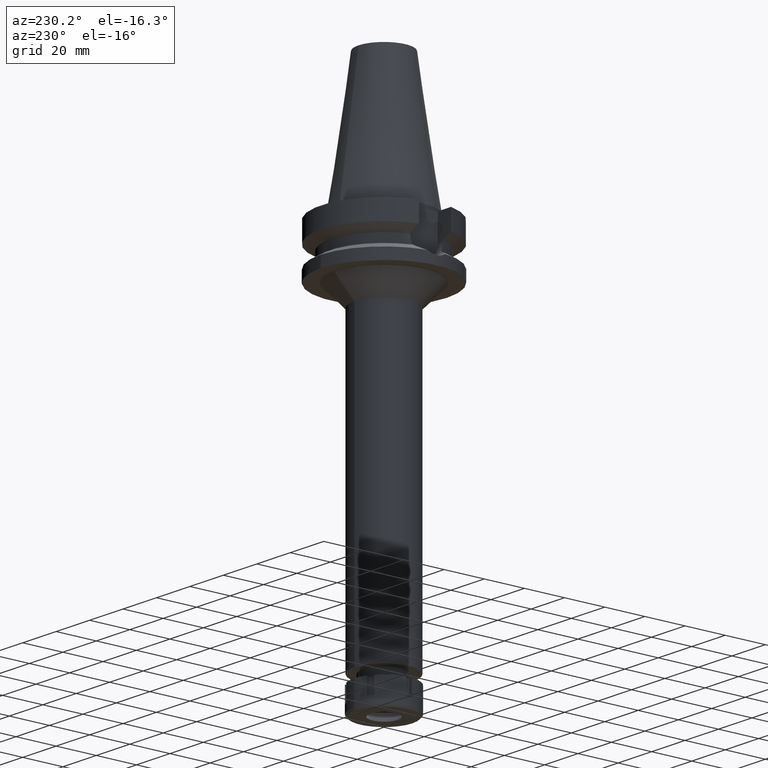
[diagram: clean part render]
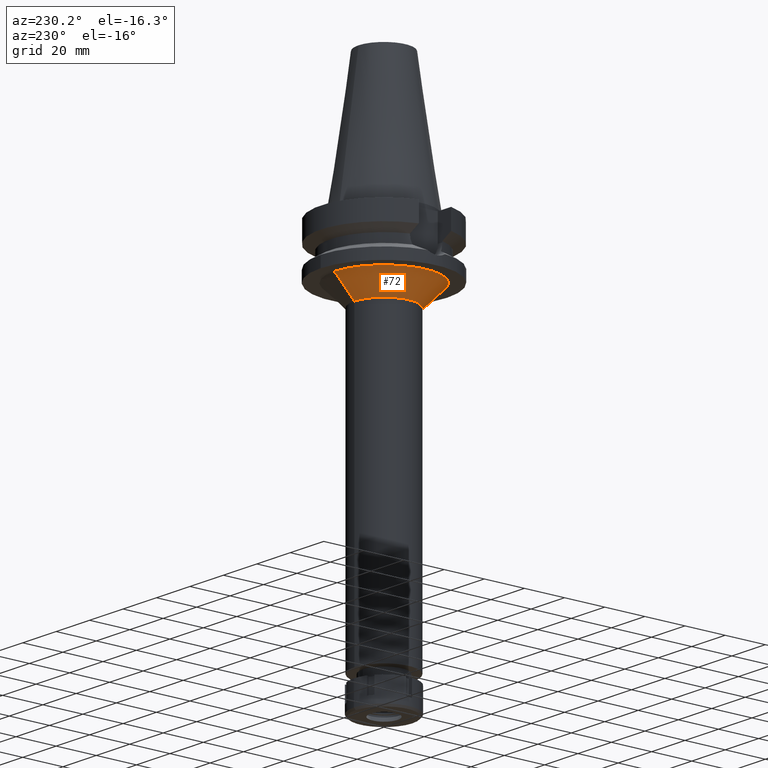
[diagram: same view with one face highlighted and labeled with its STEP entity id]
A machine part, auxiliary view. The second image highlights one B-rep face of the part: STEP entity #72.
In plain terms, the highlighted conical surface has half-angle 45 deg.
Its self-contained STEP definition (entity closure, byte-faithful):
#72 = ADVANCED_FACE ( 'NONE', ( #2583 ), #1952, .T. ) ;
#202 = VERTEX_POINT ( 'NONE', #1090 ) ;
#262 = CARTESIAN_POINT ( 'NONE',  ( 0.0000000000000000000, -14.75000000000000000, -37.00000000000000000 ) ) ;
#273 = CARTESIAN_POINT ( 'NONE',  ( 0.0000000000000000000, 24.75000000000000000, -27.00000000000000000 ) ) ;
#633 = CARTESIAN_POINT ( 'NONE',  ( 0.0000000000000000000, -24.75000000000000000, -27.00000000000000000 ) ) ;
#985 = CARTESIAN_POINT ( 'NONE',  ( 0.0000000000000000000, -24.75000000000000000, -27.00000000000000000 ) ) ;
#1089 = EDGE_CURVE ( 'NONE', #1381, #1777, #1546, .T. ) ;
#1090 = CARTESIAN_POINT ( 'NONE',  ( 0.0000000000000000000, 14.75000000000000000, -37.00000000000000000 ) ) ;
#1224 = ORIENTED_EDGE ( 'NONE', *, *, #1089, .T. ) ;
#1261 = VERTEX_POINT ( 'NONE', #262 ) ;
#1381 = VERTEX_POINT ( 'NONE', #985 ) ;
#1394 = DIRECTION ( 'NONE',  ( 0.0000000000000000000, 1.000000000000000000, 0.0000000000000000000 ) ) ;
#1463 = CIRCLE ( 'NONE', #1584, 14.75000000000000000 ) ;
#1468 = LINE ( 'NONE', #633, #2168 ) ;
#1535 = EDGE_CURVE ( 'NONE', #1261, #202, #1463, .T. ) ;
#1546 = CIRCLE ( 'NONE', #1849, 24.75000000000000000 ) ;
#1584 = AXIS2_PLACEMENT_3D ( 'NONE', #1946, #2466, #1614 ) ;
#1587 = CARTESIAN_POINT ( 'NONE',  ( 0.0000000000000000000, 0.0000000000000000000, -27.00000000000000000 ) ) ;
#1603 = EDGE_CURVE ( 'NONE', #1777, #202, #1672, .T. ) ;
#1614 = DIRECTION ( 'NONE',  ( 0.0000000000000000000, -1.000000000000000000, 0.0000000000000000000 ) ) ;
#1672 = LINE ( 'NONE', #273, #2216 ) ;
#1743 = DIRECTION ( 'NONE',  ( 0.0000000000000000000, 0.7071067811865474617, -0.7071067811865474617 ) ) ;
#1763 = CARTESIAN_POINT ( 'NONE',  ( 0.0000000000000000000, 0.0000000000000000000, -32.00000000000000000 ) ) ;
#1777 = VERTEX_POINT ( 'NONE', #2000 ) ;
#1849 = AXIS2_PLACEMENT_3D ( 'NONE', #1587, #3257, #2972 ) ;
#1946 = CARTESIAN_POINT ( 'NONE',  ( 0.0000000000000000000, 0.0000000000000000000, -37.00000000000000000 ) ) ;
#1952 = CONICAL_SURFACE ( 'NONE', #3246, 19.75000000000000000, 0.7853981633972997312 ) ;
#2000 = CARTESIAN_POINT ( 'NONE',  ( 0.0000000000000000000, 24.75000000000000000, -27.00000000000000000 ) ) ;
#2168 = VECTOR ( 'NONE', #1743, 1000.000000000000114 ) ;
#2216 = VECTOR ( 'NONE', #2497, 1000.000000000000114 ) ;
#2220 = EDGE_LOOP ( 'NONE', ( #3600, #2267, #1224, #3532 ) ) ;
#2267 = ORIENTED_EDGE ( 'NONE', *, *, #3414, .F. ) ;
#2466 = DIRECTION ( 'NONE',  ( 0.0000000000000000000, 0.0000000000000000000, -1.000000000000000000 ) ) ;
#2497 = DIRECTION ( 'NONE',  ( 0.0000000000000000000, -0.7071067811865474617, -0.7071067811865474617 ) ) ;
#2583 = FACE_OUTER_BOUND ( 'NONE', #2220, .T. ) ;
#2882 = DIRECTION ( 'NONE',  ( 0.0000000000000000000, 0.0000000000000000000, 1.000000000000000000 ) ) ;
#2972 = DIRECTION ( 'NONE',  ( 0.0000000000000000000, -1.000000000000000000, 0.0000000000000000000 ) ) ;
#3246 = AXIS2_PLACEMENT_3D ( 'NONE', #1763, #2882, #1394 ) ;
#3257 = DIRECTION ( 'NONE',  ( 0.0000000000000000000, 0.0000000000000000000, -1.000000000000000000 ) ) ;
#3414 = EDGE_CURVE ( 'NONE', #1381, #1261, #1468, .T. ) ;
#3532 = ORIENTED_EDGE ( 'NONE', *, *, #1603, .T. ) ;
#3600 = ORIENTED_EDGE ( 'NONE', *, *, #1535, .F. ) ;